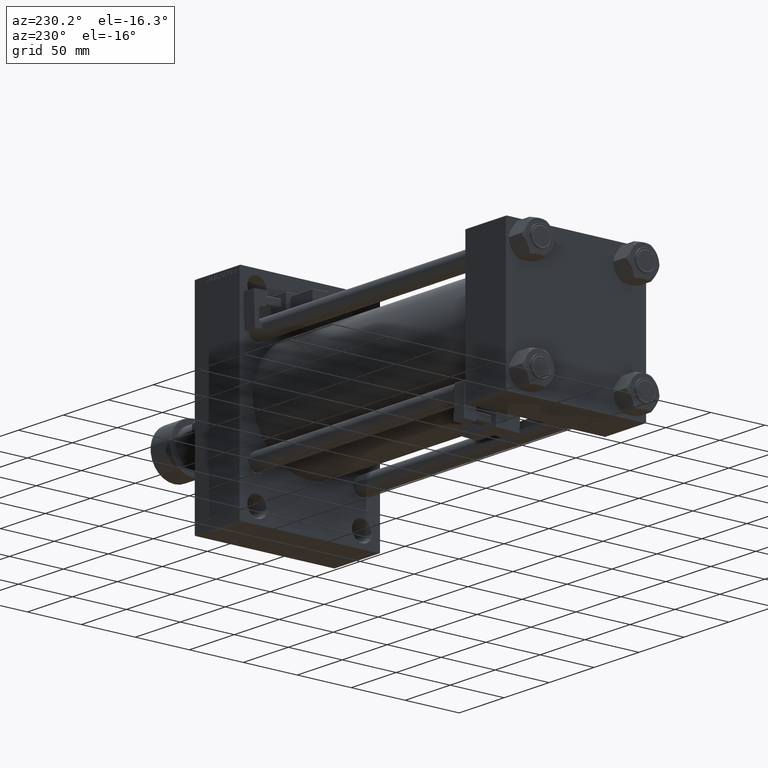
[diagram: clean part render]
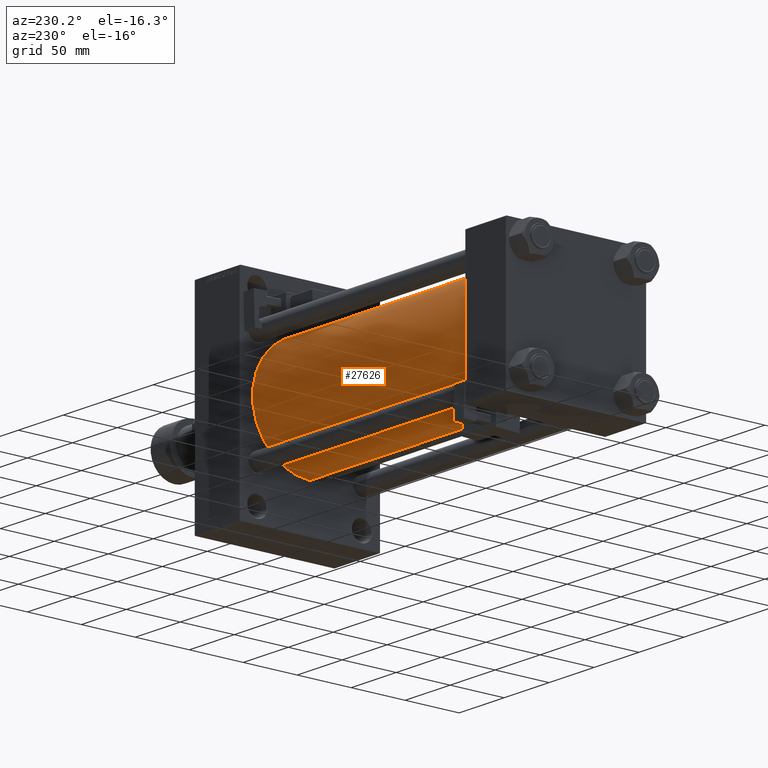
[diagram: same view with one face highlighted and labeled with its STEP entity id]
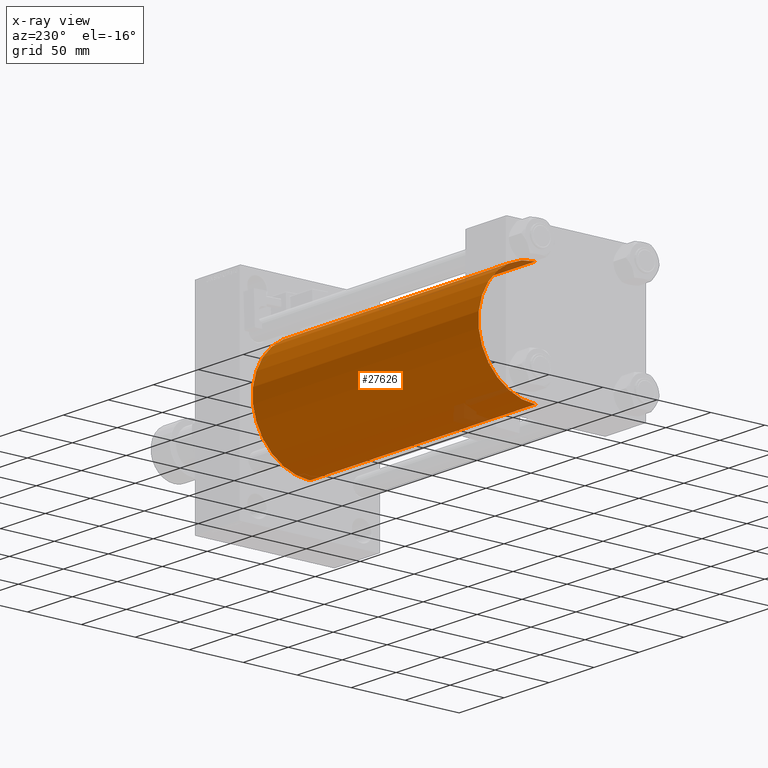
[diagram: x-ray of the same camera — body ghosted, the highlighted face saturated]
A machine part, auxiliary view. The second image highlights one B-rep face of the part: STEP entity #27626.
The next image is the same camera in x-ray: the body ghosted, the highlighted face saturated — about 3% of this face is hidden behind the body in this view.
In plain terms, the highlighted cylindrical surface (partial cylindrical patch) has radius 53 mm, axis along (-1, -0, -0).
Its self-contained STEP definition (entity closure, byte-faithful):
#477 = VECTOR ( 'NONE', #44393, 1000.000000000000000 ) ;
#1054 = AXIS2_PLACEMENT_3D ( 'NONE', #28878, #21267, #29124 ) ;
#1415 = CARTESIAN_POINT ( 'NONE',  ( 296.0000000000000000, -2.602085213965210642E-15, 53.00000000000000711 ) ) ;
#2540 = AXIS2_PLACEMENT_3D ( 'NONE', #28337, #48453, #40311 ) ;
#4391 = CARTESIAN_POINT ( 'NONE',  ( 296.0000000000000000, 3.888542821515762466E-15, -53.00000000000000711 ) ) ;
#6364 = EDGE_LOOP ( 'NONE', ( #18697, #41450, #16872, #17611 ) ) ;
#6372 = CARTESIAN_POINT ( 'NONE',  ( 296.0000000000000000, 3.888542821515762466E-15, -53.00000000000000711 ) ) ;
#7663 = EDGE_CURVE ( 'NONE', #26428, #29695, #41813, .T. ) ;
#8408 = CARTESIAN_POINT ( 'NONE',  ( 296.0000000000000000, -2.602085213965210642E-15, 0.000000000000000000 ) ) ;
#8927 = CARTESIAN_POINT ( 'NONE',  ( 296.0000000000000000, -2.602085213965210642E-15, 53.00000000000000711 ) ) ;
#13308 = VERTEX_POINT ( 'NONE', #43210 ) ;
#13815 = EDGE_CURVE ( 'NONE', #41392, #13308, #36269, .T. ) ;
#15576 = DIRECTION ( 'NONE',  ( -1.000000000000000000, -0.000000000000000000, -0.000000000000000000 ) ) ;
#16872 = ORIENTED_EDGE ( 'NONE', *, *, #28293, .T. ) ;
#17611 = ORIENTED_EDGE ( 'NONE', *, *, #13815, .F. ) ;
#18697 = ORIENTED_EDGE ( 'NONE', *, *, #32383, .F. ) ;
#18749 = VECTOR ( 'NONE', #15576, 1000.000000000000000 ) ;
#19846 = FACE_OUTER_BOUND ( 'NONE', #6364, .T. ) ;
#20342 = DIRECTION ( 'NONE',  ( -1.000000000000000000, -0.000000000000000000, -0.000000000000000000 ) ) ;
#21267 = DIRECTION ( 'NONE',  ( 1.000000000000000000, 0.000000000000000000, 0.000000000000000000 ) ) ;
#23895 = DIRECTION ( 'NONE',  ( 0.000000000000000000, 0.000000000000000000, 1.000000000000000000 ) ) ;
#26428 = VERTEX_POINT ( 'NONE', #6372 ) ;
#27626 = ADVANCED_FACE ( 'NONE', ( #19846 ), #27711, .T. ) ;
#27711 = CYLINDRICAL_SURFACE ( 'NONE', #49608, 53.00000000000000711 ) ;
#28293 = EDGE_CURVE ( 'NONE', #29695, #13308, #46404, .T. ) ;
#28337 = CARTESIAN_POINT ( 'NONE',  ( 44.99999999999998579, -2.602085213965210642E-15, 0.000000000000000000 ) ) ;
#28878 = CARTESIAN_POINT ( 'NONE',  ( 296.0000000000000000, -2.602085213965210642E-15, 0.000000000000000000 ) ) ;
#29124 = DIRECTION ( 'NONE',  ( 0.000000000000000000, 0.000000000000000000, -1.000000000000000000 ) ) ;
#29695 = VERTEX_POINT ( 'NONE', #34034 ) ;
#32383 = EDGE_CURVE ( 'NONE', #26428, #41392, #39213, .T. ) ;
#34034 = CARTESIAN_POINT ( 'NONE',  ( 44.99999999999998579, 3.888542821515762466E-15, -53.00000000000000711 ) ) ;
#36269 = LINE ( 'NONE', #1415, #477 ) ;
#39213 = CIRCLE ( 'NONE', #1054, 53.00000000000000711 ) ;
#40311 = DIRECTION ( 'NONE',  ( 0.000000000000000000, 0.000000000000000000, 1.000000000000000000 ) ) ;
#41392 = VERTEX_POINT ( 'NONE', #8927 ) ;
#41450 = ORIENTED_EDGE ( 'NONE', *, *, #7663, .T. ) ;
#41813 = LINE ( 'NONE', #4391, #18749 ) ;
#43210 = CARTESIAN_POINT ( 'NONE',  ( 44.99999999999998579, -2.602085213965210642E-15, 53.00000000000000711 ) ) ;
#44393 = DIRECTION ( 'NONE',  ( -1.000000000000000000, -0.000000000000000000, -0.000000000000000000 ) ) ;
#46404 = CIRCLE ( 'NONE', #2540, 53.00000000000000711 ) ;
#48453 = DIRECTION ( 'NONE',  ( 1.000000000000000000, -0.000000000000000000, 0.000000000000000000 ) ) ;
#49608 = AXIS2_PLACEMENT_3D ( 'NONE', #8408, #20342, #23895 ) ;